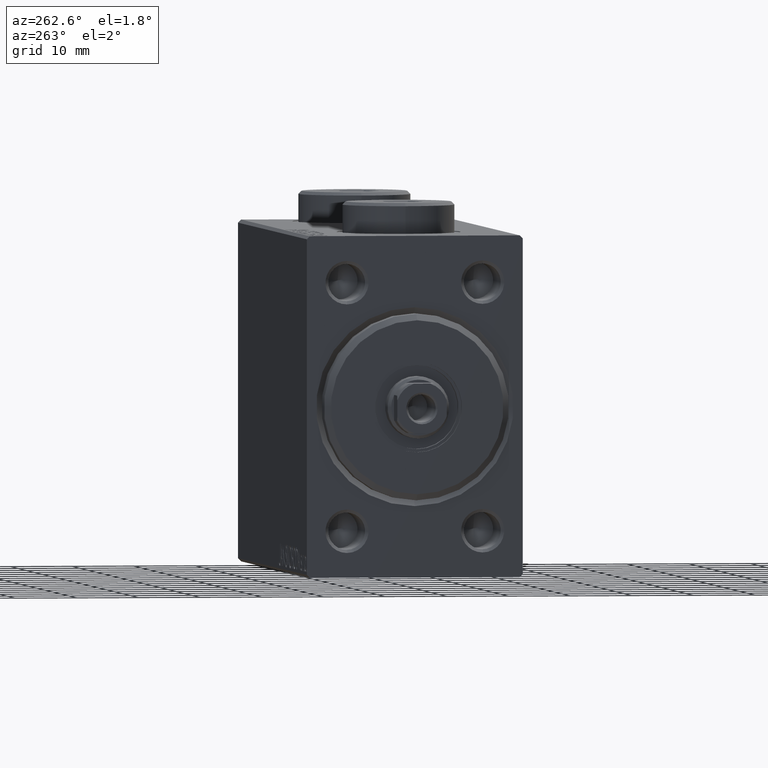
[diagram: clean part render]
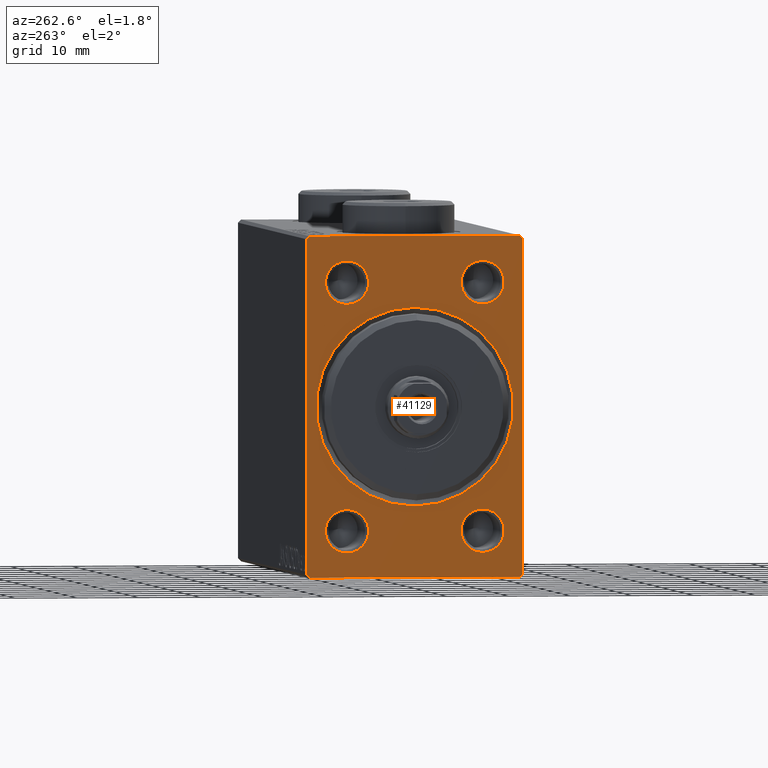
[diagram: same view with one face highlighted and labeled with its STEP entity id]
A machine part, auxiliary view. The second image highlights one B-rep face of the part: STEP entity #41129.
In plain terms, the highlighted planar face has unit normal (1, 0, 0).
Its self-contained STEP definition (entity closure, byte-faithful):
#386 = EDGE_CURVE ( 'NONE', #22856, #39699, #21571, .T. ) ;
#558 = CARTESIAN_POINT ( 'NONE',  ( 0.000000000000000000, -11.00000000000000533, 20.00000000000000711 ) ) ;
#579 = DIRECTION ( 'NONE',  ( 1.000000000000000000, 0.000000000000000000, 0.000000000000000000 ) ) ;
#849 = ORIENTED_EDGE ( 'NONE', *, *, #6796, .F. ) ;
#991 = DIRECTION ( 'NONE',  ( 1.000000000000000000, 0.000000000000000000, 0.000000000000000000 ) ) ;
#1477 = CARTESIAN_POINT ( 'NONE',  ( 0.000000000000000000, 11.00000000000000178, -20.00000000000000000 ) ) ;
#1961 = EDGE_CURVE ( 'NONE', #38521, #26226, #23095, .T. ) ;
#2494 = DIRECTION ( 'NONE',  ( 1.000000000000000000, 0.000000000000000000, 0.000000000000000000 ) ) ;
#2575 = CARTESIAN_POINT ( 'NONE',  ( 0.000000000000000000, 17.50000000000000711, -26.99999999999999645 ) ) ;
#2775 = VECTOR ( 'NONE', #5286, 1000.000000000000000 ) ;
#2820 = CARTESIAN_POINT ( 'NONE',  ( 0.000000000000000000, 1.959434878635765131E-15, -16.00000000000000000 ) ) ;
#3834 = CARTESIAN_POINT ( 'NONE',  ( 0.000000000000000000, -17.49999999999999645, 26.99999999999997158 ) ) ;
#4206 = VERTEX_POINT ( 'NONE', #18375 ) ;
#4663 = CIRCLE ( 'NONE', #37776, 3.500000000000003109 ) ;
#4891 = PLANE ( 'NONE',  #41752 ) ;
#5286 = DIRECTION ( 'NONE',  ( 0.000000000000000000, 1.000000000000000000, -9.912705577010325549E-17 ) ) ;
#5373 = EDGE_CURVE ( 'NONE', #30750, #8921, #26879, .T. ) ;
#5430 = VECTOR ( 'NONE', #26327, 1000.000000000000114 ) ;
#6111 = CARTESIAN_POINT ( 'NONE',  ( 0.000000000000000000, -11.00000000000000533, 23.50000000000001066 ) ) ;
#6796 = EDGE_CURVE ( 'NONE', #41209, #8037, #7766, .T. ) ;
#7003 = DIRECTION ( 'NONE',  ( 1.000000000000000000, 0.000000000000000000, 0.000000000000000000 ) ) ;
#7375 = CARTESIAN_POINT ( 'NONE',  ( 0.000000000000000000, 0.000000000000000000, 0.000000000000000000 ) ) ;
#7519 = ORIENTED_EDGE ( 'NONE', *, *, #5373, .T. ) ;
#7582 = DIRECTION ( 'NONE',  ( 0.000000000000000000, 0.000000000000000000, -1.000000000000000000 ) ) ;
#7646 = CARTESIAN_POINT ( 'NONE',  ( 0.000000000000000000, -17.49999999999999645, -26.99999999999999289 ) ) ;
#7766 = LINE ( 'NONE', #18329, #29880 ) ;
#8037 = VERTEX_POINT ( 'NONE', #22803 ) ;
#8152 = ORIENTED_EDGE ( 'NONE', *, *, #34000, .T. ) ;
#8619 = VERTEX_POINT ( 'NONE', #44381 ) ;
#8801 = ORIENTED_EDGE ( 'NONE', *, *, #44233, .T. ) ;
#8829 = CARTESIAN_POINT ( 'NONE',  ( 0.000000000000000000, -11.00000000000000533, 16.50000000000000355 ) ) ;
#8921 = VERTEX_POINT ( 'NONE', #2820 ) ;
#9392 = ORIENTED_EDGE ( 'NONE', *, *, #386, .T. ) ;
#10274 = EDGE_CURVE ( 'NONE', #39344, #44038, #43706, .T. ) ;
#10739 = CIRCLE ( 'NONE', #45347, 3.500000000000003109 ) ;
#11037 = DIRECTION ( 'NONE',  ( 0.000000000000000000, 0.000000000000000000, -1.000000000000000000 ) ) ;
#11133 = DIRECTION ( 'NONE',  ( 1.000000000000000000, 0.000000000000000000, 0.000000000000000000 ) ) ;
#11334 = CARTESIAN_POINT ( 'NONE',  ( 0.000000000000000000, 0.000000000000000000, 0.000000000000000000 ) ) ;
#11481 = CARTESIAN_POINT ( 'NONE',  ( 0.000000000000000000, -17.49999999999999645, 26.99999999999997158 ) ) ;
#11572 = CARTESIAN_POINT ( 'NONE',  ( 0.000000000000000000, 17.00000000000000000, 27.49999999999999289 ) ) ;
#11921 = VERTEX_POINT ( 'NONE', #8829 ) ;
#12072 = ORIENTED_EDGE ( 'NONE', *, *, #41351, .F. ) ;
#12312 = CARTESIAN_POINT ( 'NONE',  ( 0.000000000000000000, -16.99999999999997868, -27.50000000000000711 ) ) ;
#12333 = ORIENTED_EDGE ( 'NONE', *, *, #13743, .T. ) ;
#13166 = CARTESIAN_POINT ( 'NONE',  ( 0.000000000000000000, 17.50000000000000711, -26.99999999999999645 ) ) ;
#13295 = CARTESIAN_POINT ( 'NONE',  ( 0.000000000000000000, -11.00000000000000533, -16.49999999999999645 ) ) ;
#13743 = EDGE_CURVE ( 'NONE', #39344, #16146, #21280, .T. ) ;
#13980 = VERTEX_POINT ( 'NONE', #24230 ) ;
#14558 = FACE_BOUND ( 'NONE', #27431, .T. ) ;
#14782 = FACE_BOUND ( 'NONE', #24882, .T. ) ;
#15003 = CIRCLE ( 'NONE', #34832, 3.500000000000003109 ) ;
#15488 = DIRECTION ( 'NONE',  ( 0.000000000000000000, 0.000000000000000000, -1.000000000000000000 ) ) ;
#15713 = CARTESIAN_POINT ( 'NONE',  ( 0.000000000000000000, 17.00000000000000000, 27.49999999999999289 ) ) ;
#15794 = CIRCLE ( 'NONE', #28268, 3.500000000000003109 ) ;
#16146 = VERTEX_POINT ( 'NONE', #23650 ) ;
#16596 = CARTESIAN_POINT ( 'NONE',  ( 0.000000000000000000, 11.00000000000000178, 16.50000000000000355 ) ) ;
#16866 = CARTESIAN_POINT ( 'NONE',  ( 0.000000000000000000, 0.000000000000000000, 16.00000000000000000 ) ) ;
#16891 = LINE ( 'NONE', #12312, #5430 ) ;
#17625 = DIRECTION ( 'NONE',  ( -0.000000000000000000, 0.7071067811865474617, 0.7071067811865474617 ) ) ;
#18329 = CARTESIAN_POINT ( 'NONE',  ( 0.000000000000000000, 17.50000000000000711, -27.50000000000001066 ) ) ;
#18375 = CARTESIAN_POINT ( 'NONE',  ( 0.000000000000000000, 11.00000000000000178, 23.50000000000001066 ) ) ;
#18926 = VECTOR ( 'NONE', #17625, 1000.000000000000114 ) ;
#19526 = AXIS2_PLACEMENT_3D ( 'NONE', #7375, #42590, #11037 ) ;
#19942 = CARTESIAN_POINT ( 'NONE',  ( 0.000000000000000000, 11.00000000000000178, 20.00000000000000711 ) ) ;
#20163 = DIRECTION ( 'NONE',  ( 0.000000000000000000, 0.000000000000000000, -1.000000000000000000 ) ) ;
#21044 = ORIENTED_EDGE ( 'NONE', *, *, #37712, .T. ) ;
#21051 = ORIENTED_EDGE ( 'NONE', *, *, #1961, .T. ) ;
#21280 = LINE ( 'NONE', #3834, #18926 ) ;
#21442 = DIRECTION ( 'NONE',  ( 0.000000000000000000, 0.000000000000000000, -1.000000000000000000 ) ) ;
#21571 = CIRCLE ( 'NONE', #34126, 3.500000000000003109 ) ;
#21654 = FACE_BOUND ( 'NONE', #22909, .T. ) ;
#21825 = ORIENTED_EDGE ( 'NONE', *, *, #10274, .F. ) ;
#21834 = CARTESIAN_POINT ( 'NONE',  ( 0.000000000000000000, 17.50000000000000000, 27.49999999999999289 ) ) ;
#21908 = DIRECTION ( 'NONE',  ( 1.000000000000000000, 0.000000000000000000, 0.000000000000000000 ) ) ;
#21991 = DIRECTION ( 'NONE',  ( 0.000000000000000000, -1.261617073437677752E-16, 1.000000000000000000 ) ) ;
#22270 = CARTESIAN_POINT ( 'NONE',  ( 0.000000000000000000, -17.49999999999999645, -27.50000000000000711 ) ) ;
#22709 = DIRECTION ( 'NONE',  ( 0.000000000000000000, 0.000000000000000000, -1.000000000000000000 ) ) ;
#22803 = CARTESIAN_POINT ( 'NONE',  ( 0.000000000000000000, 17.50000000000000000, 26.99999999999999645 ) ) ;
#22856 = VERTEX_POINT ( 'NONE', #41067 ) ;
#22894 = ORIENTED_EDGE ( 'NONE', *, *, #44430, .F. ) ;
#22909 = EDGE_LOOP ( 'NONE', ( #7519, #42976 ) ) ;
#22963 = LINE ( 'NONE', #22270, #2775 ) ;
#23047 = ORIENTED_EDGE ( 'NONE', *, *, #26804, .T. ) ;
#23095 = CIRCLE ( 'NONE', #42988, 3.500000000000003109 ) ;
#23650 = CARTESIAN_POINT ( 'NONE',  ( 0.000000000000000000, -16.99999999999997868, 27.49999999999998579 ) ) ;
#24230 = CARTESIAN_POINT ( 'NONE',  ( 0.000000000000000000, 16.99999999999999289, -27.50000000000001066 ) ) ;
#24639 = ORIENTED_EDGE ( 'NONE', *, *, #35590, .T. ) ;
#24677 = CARTESIAN_POINT ( 'NONE',  ( 0.000000000000000000, 11.00000000000000178, -20.00000000000000000 ) ) ;
#24821 = EDGE_LOOP ( 'NONE', ( #21825, #12333, #12072, #24639, #849, #8801, #22894, #23047 ) ) ;
#24882 = EDGE_LOOP ( 'NONE', ( #45526, #9392 ) ) ;
#24902 = DIRECTION ( 'NONE',  ( 0.000000000000000000, 0.000000000000000000, -1.000000000000000000 ) ) ;
#24920 = CARTESIAN_POINT ( 'NONE',  ( 0.000000000000000000, -11.00000000000000533, -20.00000000000000000 ) ) ;
#25443 = EDGE_CURVE ( 'NONE', #45177, #4206, #43625, .T. ) ;
#25584 = DIRECTION ( 'NONE',  ( -0.000000000000000000, 0.7071067811865500152, -0.7071067811865451302 ) ) ;
#25805 = FACE_BOUND ( 'NONE', #26419, .T. ) ;
#26226 = VERTEX_POINT ( 'NONE', #43778 ) ;
#26327 = DIRECTION ( 'NONE',  ( -0.000000000000000000, -0.7071067811865474617, 0.7071067811865474617 ) ) ;
#26419 = EDGE_LOOP ( 'NONE', ( #28856, #42982 ) ) ;
#26804 = EDGE_CURVE ( 'NONE', #8619, #44038, #16891, .T. ) ;
#26842 = EDGE_CURVE ( 'NONE', #39699, #22856, #4663, .T. ) ;
#26879 = CIRCLE ( 'NONE', #19526, 16.00000000000000000 ) ;
#27160 = DIRECTION ( 'NONE',  ( 0.000000000000000000, -0.7071067811865474617, -0.7071067811865474617 ) ) ;
#27431 = EDGE_LOOP ( 'NONE', ( #21051, #8152 ) ) ;
#28131 = AXIS2_PLACEMENT_3D ( 'NONE', #19942, #2494, #20163 ) ;
#28268 = AXIS2_PLACEMENT_3D ( 'NONE', #24920, #11133, #15488 ) ;
#28269 = EDGE_LOOP ( 'NONE', ( #21044, #28573 ) ) ;
#28573 = ORIENTED_EDGE ( 'NONE', *, *, #28722, .T. ) ;
#28722 = EDGE_CURVE ( 'NONE', #11921, #42603, #15003, .T. ) ;
#28856 = ORIENTED_EDGE ( 'NONE', *, *, #30545, .T. ) ;
#29062 = CARTESIAN_POINT ( 'NONE',  ( 0.000000000000000000, 11.00000000000000178, 20.00000000000000711 ) ) ;
#29777 = CIRCLE ( 'NONE', #35680, 16.00000000000000000 ) ;
#29791 = CARTESIAN_POINT ( 'NONE',  ( 0.000000000000000000, 0.000000000000000000, 0.000000000000000000 ) ) ;
#29880 = VECTOR ( 'NONE', #21991, 1000.000000000000000 ) ;
#29947 = VECTOR ( 'NONE', #32672, 1000.000000000000000 ) ;
#30255 = DIRECTION ( 'NONE',  ( 0.000000000000000000, 0.000000000000000000, -1.000000000000000000 ) ) ;
#30545 = EDGE_CURVE ( 'NONE', #4206, #45177, #44397, .T. ) ;
#30750 = VERTEX_POINT ( 'NONE', #16866 ) ;
#31127 = CARTESIAN_POINT ( 'NONE',  ( 0.000000000000000000, -11.00000000000000533, 20.00000000000000711 ) ) ;
#31159 = DIRECTION ( 'NONE',  ( 1.000000000000000000, 0.000000000000000000, 0.000000000000000000 ) ) ;
#32672 = DIRECTION ( 'NONE',  ( 0.000000000000000000, -1.000000000000000000, -1.982541115402065356E-16 ) ) ;
#33719 = DIRECTION ( 'NONE',  ( 1.000000000000000000, 0.000000000000000000, 0.000000000000000000 ) ) ;
#34000 = EDGE_CURVE ( 'NONE', #26226, #38521, #15794, .T. ) ;
#34089 = VERTEX_POINT ( 'NONE', #15713 ) ;
#34126 = AXIS2_PLACEMENT_3D ( 'NONE', #1477, #21908, #35759 ) ;
#34589 = DIRECTION ( 'NONE',  ( 1.000000000000000000, 0.000000000000000000, 0.000000000000000000 ) ) ;
#34832 = AXIS2_PLACEMENT_3D ( 'NONE', #31127, #34589, #41743 ) ;
#35590 = EDGE_CURVE ( 'NONE', #34089, #8037, #43129, .T. ) ;
#35680 = AXIS2_PLACEMENT_3D ( 'NONE', #29791, #33719, #30255 ) ;
#35759 = DIRECTION ( 'NONE',  ( 0.000000000000000000, 0.000000000000000000, -1.000000000000000000 ) ) ;
#36006 = EDGE_CURVE ( 'NONE', #8921, #30750, #29777, .T. ) ;
#36405 = VECTOR ( 'NONE', #25584, 1000.000000000000114 ) ;
#37340 = VECTOR ( 'NONE', #22709, 1000.000000000000000 ) ;
#37712 = EDGE_CURVE ( 'NONE', #42603, #11921, #10739, .T. ) ;
#37776 = AXIS2_PLACEMENT_3D ( 'NONE', #24677, #31159, #24902 ) ;
#38521 = VERTEX_POINT ( 'NONE', #13295 ) ;
#39153 = LINE ( 'NONE', #21834, #29947 ) ;
#39200 = AXIS2_PLACEMENT_3D ( 'NONE', #29062, #579, #42918 ) ;
#39344 = VERTEX_POINT ( 'NONE', #11481 ) ;
#39668 = FACE_BOUND ( 'NONE', #28269, .T. ) ;
#39699 = VERTEX_POINT ( 'NONE', #39967 ) ;
#39886 = DIRECTION ( 'NONE',  ( 0.000000000000000000, 0.000000000000000000, -1.000000000000000000 ) ) ;
#39967 = CARTESIAN_POINT ( 'NONE',  ( 0.000000000000000000, 11.00000000000000178, -16.49999999999999645 ) ) ;
#40036 = CARTESIAN_POINT ( 'NONE',  ( 0.000000000000000000, -11.00000000000000533, -20.00000000000000000 ) ) ;
#41067 = CARTESIAN_POINT ( 'NONE',  ( 0.000000000000000000, 11.00000000000000178, -23.50000000000000355 ) ) ;
#41129 = ADVANCED_FACE ( 'NONE', ( #21654, #14558, #39668, #25805, #14782, #42884 ), #4891, .F. ) ;
#41209 = VERTEX_POINT ( 'NONE', #13166 ) ;
#41246 = LINE ( 'NONE', #2575, #44034 ) ;
#41351 = EDGE_CURVE ( 'NONE', #34089, #16146, #39153, .T. ) ;
#41743 = DIRECTION ( 'NONE',  ( 0.000000000000000000, 0.000000000000000000, -1.000000000000000000 ) ) ;
#41752 = AXIS2_PLACEMENT_3D ( 'NONE', #11334, #991, #39886 ) ;
#42590 = DIRECTION ( 'NONE',  ( 1.000000000000000000, 0.000000000000000000, 0.000000000000000000 ) ) ;
#42603 = VERTEX_POINT ( 'NONE', #6111 ) ;
#42884 = FACE_OUTER_BOUND ( 'NONE', #24821, .T. ) ;
#42918 = DIRECTION ( 'NONE',  ( 0.000000000000000000, 0.000000000000000000, -1.000000000000000000 ) ) ;
#42976 = ORIENTED_EDGE ( 'NONE', *, *, #36006, .T. ) ;
#42982 = ORIENTED_EDGE ( 'NONE', *, *, #25443, .T. ) ;
#42988 = AXIS2_PLACEMENT_3D ( 'NONE', #40036, #43274, #7582 ) ;
#43129 = LINE ( 'NONE', #11572, #36405 ) ;
#43245 = CARTESIAN_POINT ( 'NONE',  ( 0.000000000000000000, -17.49999999999999645, 27.49999999999998579 ) ) ;
#43274 = DIRECTION ( 'NONE',  ( 1.000000000000000000, 0.000000000000000000, 0.000000000000000000 ) ) ;
#43625 = CIRCLE ( 'NONE', #28131, 3.500000000000003109 ) ;
#43706 = LINE ( 'NONE', #43245, #37340 ) ;
#43778 = CARTESIAN_POINT ( 'NONE',  ( 0.000000000000000000, -11.00000000000000533, -23.50000000000000355 ) ) ;
#44034 = VECTOR ( 'NONE', #27160, 1000.000000000000114 ) ;
#44038 = VERTEX_POINT ( 'NONE', #7646 ) ;
#44233 = EDGE_CURVE ( 'NONE', #41209, #13980, #41246, .T. ) ;
#44381 = CARTESIAN_POINT ( 'NONE',  ( 0.000000000000000000, -16.99999999999997868, -27.50000000000000711 ) ) ;
#44397 = CIRCLE ( 'NONE', #39200, 3.500000000000003109 ) ;
#44430 = EDGE_CURVE ( 'NONE', #8619, #13980, #22963, .T. ) ;
#45177 = VERTEX_POINT ( 'NONE', #16596 ) ;
#45347 = AXIS2_PLACEMENT_3D ( 'NONE', #558, #7003, #21442 ) ;
#45526 = ORIENTED_EDGE ( 'NONE', *, *, #26842, .T. ) ;